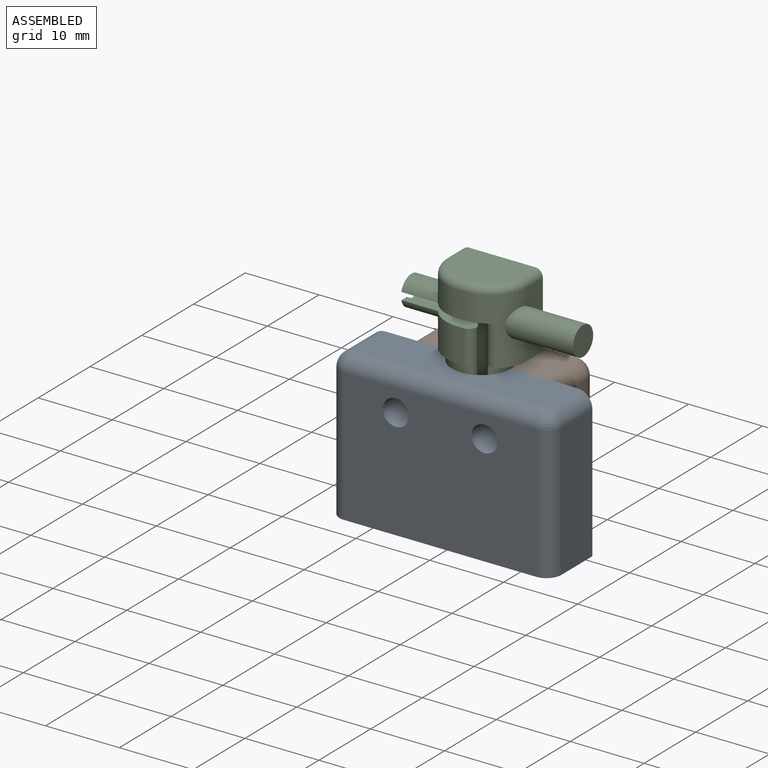
[diagram: assembled view]
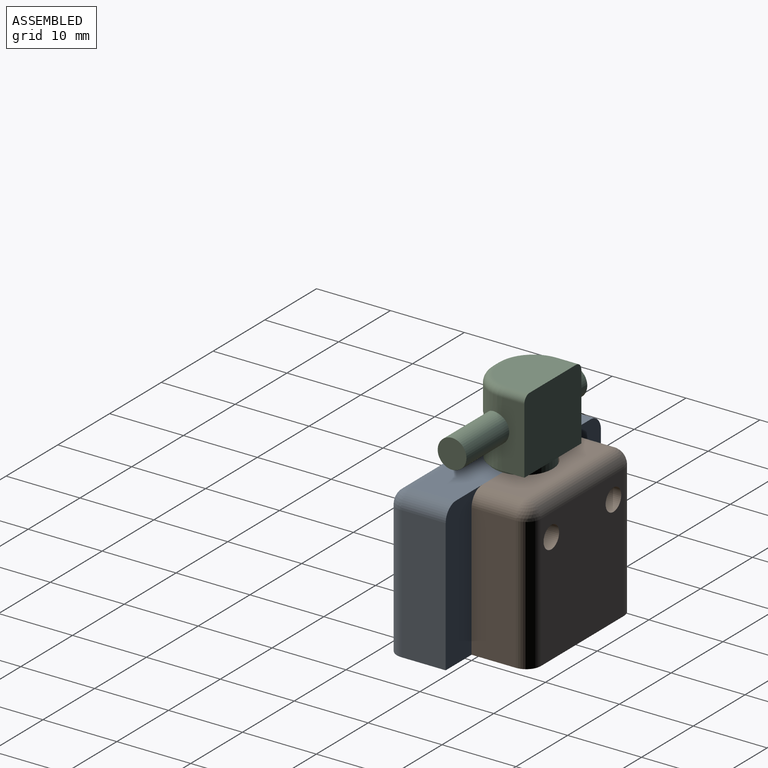
[diagram: assembled view, second angle]
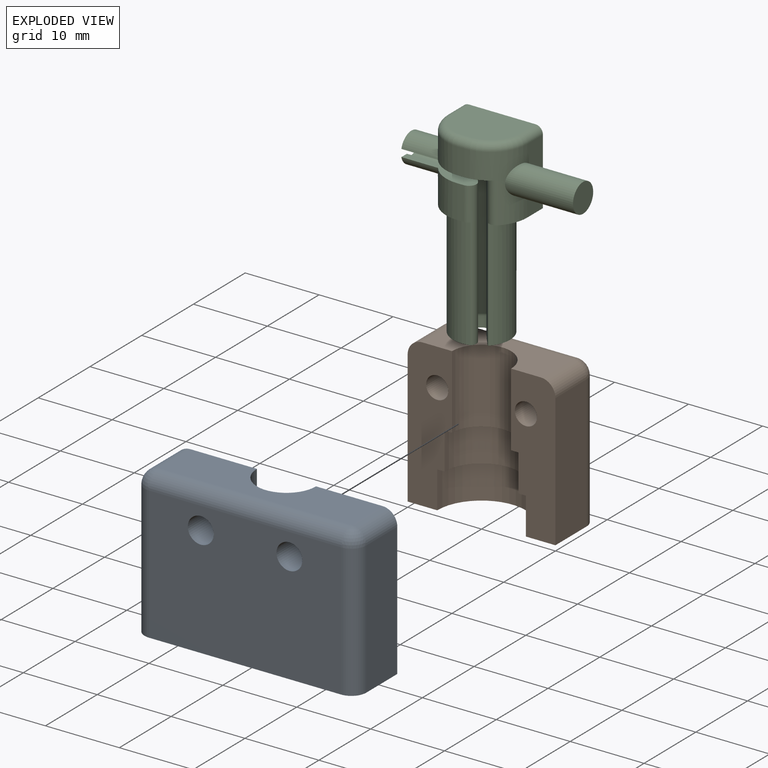
[diagram: exploded view]
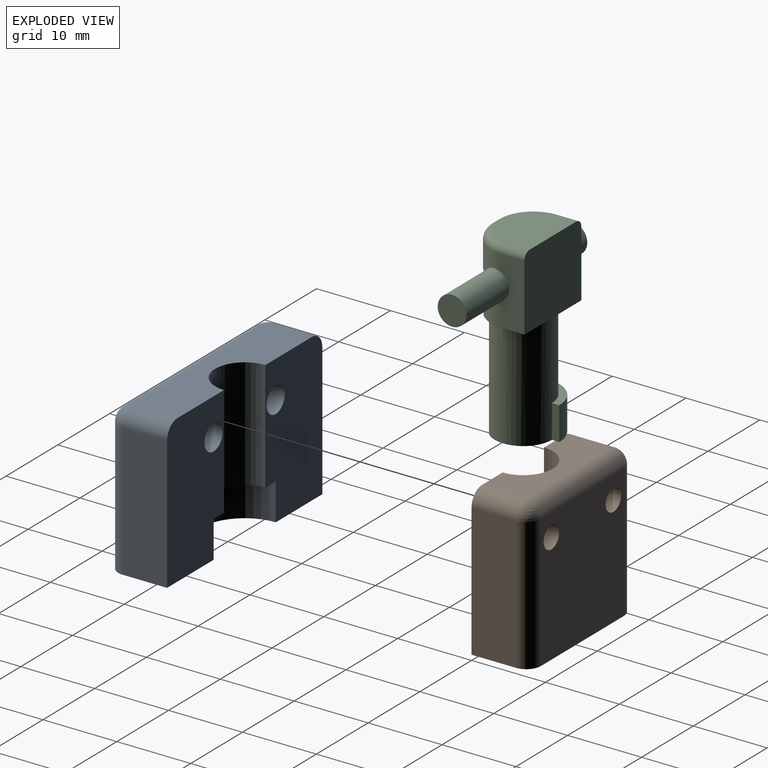
[diagram: exploded view, second angle]
ASSEMBLY  parts=3 mates=3
PART A: 19 faces, bbox 30x8x20 mm
  f0: plane 20x11mm, normal (0,1,0), area 199.5mm2, adj f2,f3,f4,f7,f8,f9,f13,f17
  f1: plane 20x11mm, normal (0,1,0), area 199.5mm2, adj f2,f3,f6,f7,f8,f9,f10,f18
  f2: plane 26x6mm, normal (0,0,1), area 130.9mm2, adj f0,f1,f9,f10,f13,f14
  f3: plane 30x8mm, normal (0,0,-1), area 181.7mm2, adj f0,f1,f4,f5,f6,f7,f11,f16
  f4: plane 18x6mm, normal (-1,0,0), area 108mm2, adj f0,f3,f13,f16
  f5: plane 26x18mm, normal (0,-1,0), area 448.8mm2, adj f3,f11,f14,f16,f17,f18
  f6: plane 18x6mm, normal (1,0,0), area 108mm2, adj f1,f3,f10,f11
  f7: cylinder r=6mm len=12mm, axis (0,0,-1), area 94.2mm2, adj f0,f1,f3,f8
  f8: plane 12x6mm, normal (0,0,-1), area 31.4mm2, adj f0,f1,f7,f9
  f9: cylinder r=4mm len=15mm, axis (0,0,-1), area 188.5mm2, adj f0,f1,f2,f8
  f10: cylinder r=2mm len=6mm, axis (0,-1,0), area 18.8mm2, adj f1,f2,f6,f12
  f11: cylinder r=2mm len=18mm, axis (0,0,1), area 56.5mm2, adj f3,f5,f6,f12
  f12: sphere r=2mm, area 6.3mm2, adj f10,f11,f14
  f13: cylinder r=2mm len=6mm, axis (0,1,0), area 18.8mm2, adj f0,f2,f4,f15
  f14: cylinder r=2mm len=26mm, axis (-1,0,0), area 81.7mm2, adj f2,f5,f12,f15
  f15: sphere r=2mm, area 6.3mm2, adj f13,f14,f16
  f16: cylinder r=2mm len=18mm, axis (0,0,-1), area 56.5mm2, adj f3,f4,f5,f15
  f17: cylinder r=1.75mm len=8mm, axis (0,1,0), area 88mm2, adj f0,f5
  f18: cylinder r=1.75mm len=8mm, axis (0,1,0), area 88mm2, adj f1,f5
PART B: 21 faces, bbox 20x8x20 mm
  f0: plane 20x6mm, normal (0,-1,0), area 97.1mm2, adj f2,f3,f4,f7,f8,f9,f10,f11
  f1: plane 20x6mm, normal (0,-1,0), area 97.1mm2, adj f2,f3,f5,f7,f8,f9,f10,f11
  f2: plane 16x6mm, normal (0,0,1), area 70.9mm2, adj f0,f1,f9,f12,f15,f16
  f3: plane 20x8mm, normal (0,0,-1), area 101.7mm2, adj f0,f1,f4,f5,f6,f8,f13,f18
  f4: plane 18x6mm, normal (-1,0,0), area 108mm2, adj f0,f3,f12,f13
  f5: plane 18x6mm, normal (1,0,0), area 108mm2, adj f1,f3,f15,f18
  f6: plane 18x16mm, normal (0,1,0), area 273.9mm2, adj f3,f13,f16,f18,f19,f20
  f7: plane 12x6mm, normal (0,0,-1), area 17.3mm2, adj f0,f1,f8,f10
  f8: cylinder r=6mm len=12mm, axis (0,0,-1), area 94.2mm2, adj f0,f1,f3,f7
  f9: cylinder r=4mm len=10mm, axis (0,0,-1), area 125.7mm2, adj f0,f1,f2,f11
  f10: cylinder r=5mm len=10mm, axis (0,0,-1), area 78.5mm2, adj f0,f1,f7,f11
  f11: plane 10x5mm, normal (0,0,-1), area 14.1mm2, adj f0,f1,f9,f10
  f12: cylinder r=2mm len=6mm, axis (0,1,0), area 18.8mm2, adj f0,f2,f4,f14
  f13: cylinder r=2mm len=18mm, axis (0,0,1), area 56.5mm2, adj f3,f4,f6,f14
  f14: sphere r=2mm, area 6.3mm2, adj f12,f13,f16
  f15: cylinder r=2mm len=6mm, axis (0,-1,0), area 18.8mm2, adj f1,f2,f5,f17
  f16: cylinder r=2mm len=16mm, axis (1,0,0), area 50.3mm2, adj f2,f6,f14,f17
  f17: sphere r=2mm, area 6.3mm2, adj f15,f16,f18
  f18: cylinder r=2mm len=18mm, axis (0,0,-1), area 56.5mm2, adj f3,f5,f6,f17
  f19: cylinder r=1.5mm len=8mm, axis (0,-1,0), area 75.4mm2, adj f1,f6
  f20: cylinder r=1.5mm len=8mm, axis (0,-1,0), area 75.4mm2, adj f0,f6
PART C: 36 faces, bbox 23.4x9.5x25.2 mm
  f0: plane 13.51x4.87mm, normal (0,0,-1), area 25mm2, adj f2,f4,f17,f20,f21,f23,f26,f27
  f1: plane 1x0.13mm, normal (0,0,-1), area 0.1mm2, adj f4,f23
  f2: plane 20.5x2.07mm, normal (0.79,0.61,0), area 53.6mm2, adj f0,f4,f8,f33
  f3: plane 19.5x1.4mm, normal (-0.79,-0.61,0), area 34.4mm2, adj f4,f8,f22,f34
  f4: cylinder r=1mm len=20.5mm, axis (0,0,-1), area 101.7mm2, adj f0,f1,f2,f3,f8,f22,f23,f24
  f5: plane 4.5x0.91mm, normal (0,1,0), area 4.1mm2, adj f6,f22,f25,f34
  f6: plane 11x8mm, normal (0,0,-1), area 28.9mm2, adj f5,f7,f13,f15,f16,f25,f26,f33
  f7: cylinder r=3.88mm len=15mm, axis (0,0,-1), area 312.8mm2, adj f6,f8,f9,f10,f12,f33,f34
  f8: plane 8.75x8.58mm, normal (0,0,-1), area 46.5mm2, adj f2,f3,f4,f7,f9,f10,f11,f33
  f9: plane 4.5x0.97mm, normal (0.26,0.97,0), area 4.5mm2, adj f7,f8,f11,f12
  f10: plane 4.5x1mm, normal (-1,0,0), area 4.5mm2, adj f7,f8,f11,f12
  f11: cylinder r=4.88mm len=4.71mm, axis (0,0,-1), area 28.7mm2, adj f8,f9,f10,f12
  f12: plane 4.71x3.87mm, normal (0,0,1), area 5.7mm2, adj f7,f9,f10,f11
  f13: plane 9x3mm, normal (1,0,0), area 24.5mm2, adj f6,f16,f20,f25,f27,f28
  f14: plane 9x7mm, normal (0,0,1), area 56.1mm2, adj f16,f28,f29,f30,f31,f32
  f15: plane 9x3mm, normal (-1,0,0), area 24.7mm2, adj f6,f16,f18,f26,f32
  f16: plane 11x10mm, normal (0,-1,0), area 109.6mm2, adj f6,f13,f14,f15,f28,f32
  f17: plane 3.5x1mm, normal (0,1,0), area 3.5mm2, adj f0,f26,f27,f30
  f18: cylinder r=1.95mm len=8.25mm, axis (1,0,0), area 101.1mm2, adj f15,f19,f26
  f19: plane 3.9x3.9mm, normal (-1,0,0), area 11.9mm2, adj f18
  f20: cylinder r=2mm len=4.95mm, axis (-1,0,0), area 49.7mm2, adj f0,f13,f21,f22,f25,f27
  f21: plane 4x3.94mm, normal (1,0,0), area 8.4mm2, adj f0,f20,f22,f23
  f22: plane 11.08x3.31mm, normal (0,0,1), area 19.9mm2, adj f3,f4,f5,f20,f21,f23,f24,f25
  f23: cylinder r=1mm len=10mm, axis (1,0,0), area 46.4mm2, adj f0,f1,f4,f21,f22,f24,f35
  f24: bspline ~2x2mm, area 3.5mm2, adj f4,f22,f23
  f25: cylinder r=5mm len=5mm, axis (0,0,1), area 33.4mm2, adj f5,f6,f13,f20,f22
  f26: cylinder r=5mm len=9mm, axis (0,0,-1), area 39.1mm2, adj f0,f6,f15,f17,f18,f31,f33
  f27: cylinder r=5mm len=5mm, axis (0,0,1), area 25.6mm2, adj f0,f13,f17,f20,f29
  f28: cylinder r=1mm len=3mm, axis (0,-1,0), area 4.7mm2, adj f13,f14,f16,f29
  f29: torus R=4mm, axis (0,0,-1), area 11.4mm2, adj f14,f27,f28,f30
  f30: cylinder r=1mm len=1mm, axis (-1,0,0), area 1.6mm2, adj f14,f17,f29,f31
  f31: torus R=4mm, axis (0,0,-1), area 11.4mm2, adj f14,f26,f30,f32
  f32: cylinder r=1mm len=3mm, axis (0,1,0), area 4.7mm2, adj f14,f15,f16,f31
  f33: cylinder r=1mm len=20.5mm, axis (0,0,-1), area 14.7mm2, adj f0,f2,f6,f7,f8,f26
  f34: cylinder r=1mm len=19.5mm, axis (0,0,1), area 31.7mm2, adj f3,f5,f6,f7,f8,f22
  f35: cylinder r=0.5mm len=1.73mm, axis (0,-1,0), area 0.7mm2, adj f0,f23
PLACE A t=(0,0,-20)mm
PLACE B t=(0,0,-20)mm
PLACE C rot(axis=(0,0,1),180deg) t=(0,0,-14)mm
MATE planar A.f1 <-> B.f0  axis (0,1,0) through (6,0,-17.5)mm
MATE revolute C.f4 <-> B.f9  axis (0,0,-1) through (0,0,6.5)mm
MATE fastened B.f20 <-> A.f17  axis (0,-1,0) through (-6,0,-5)mm
